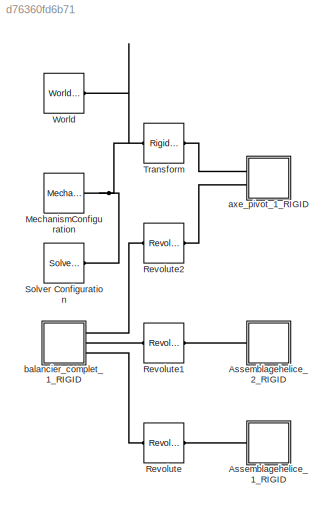
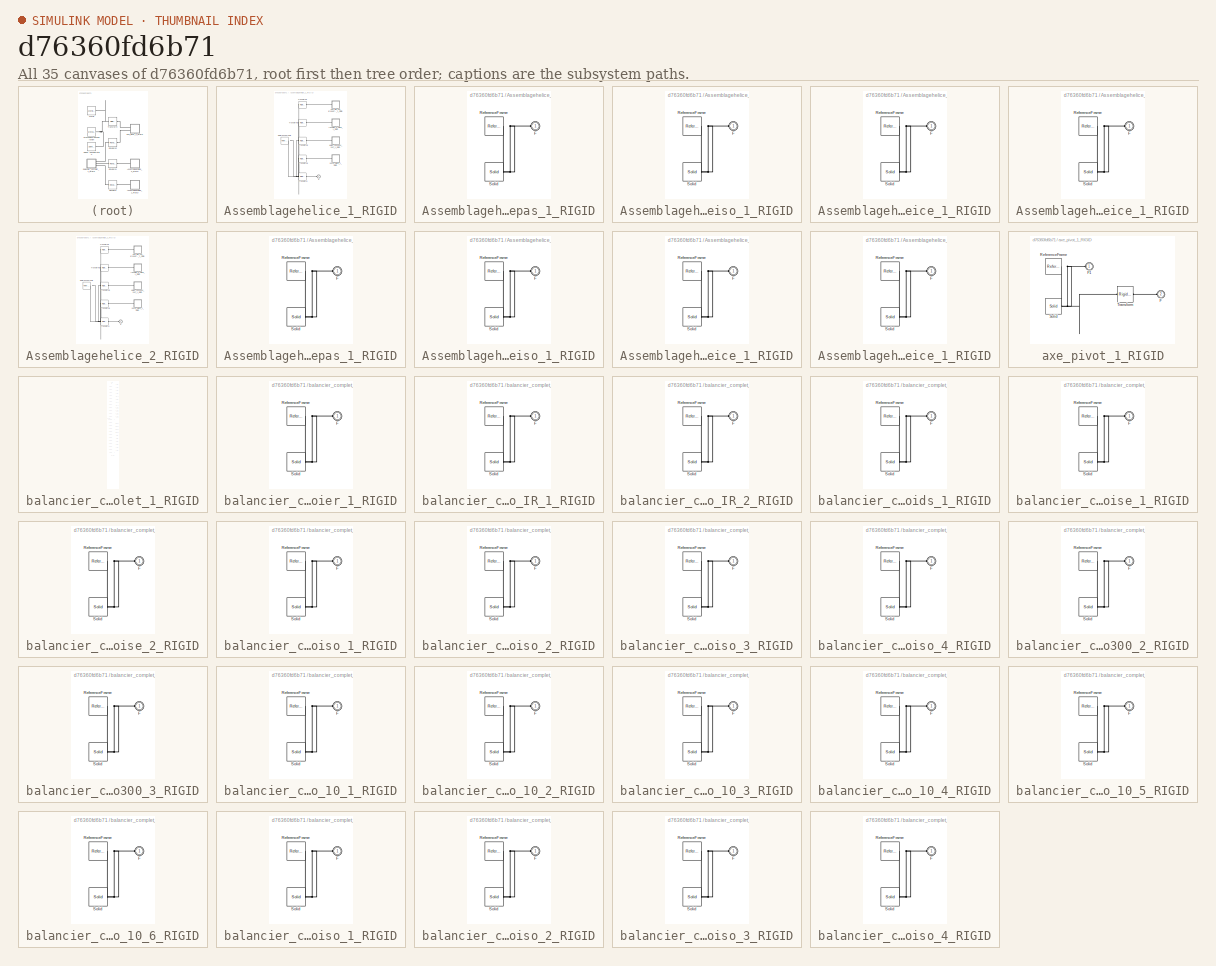
[diagram: thumbnail index - all 35 canvases of the model, root first then tree order]
MODEL slx_d76360fd6b71
KIND model
CONFIG AbsTol = auto
CONFIG EnableMultiTasking = off
CONFIG FixedStep = auto
CONFIG MaxStep = auto
CONFIG MinStep = auto
CONFIG RelTol = 1e-3
CONFIG SampleTimeConstraint = Unconstrained
CONFIG Solver = VariableStepAuto
CONFIG SolverName = VariableStepAuto
CONFIG StartTime = 0.0
CONFIG StopTime = 10.0
WORKSPACE source: external: MATLAB File  (data not in archive)
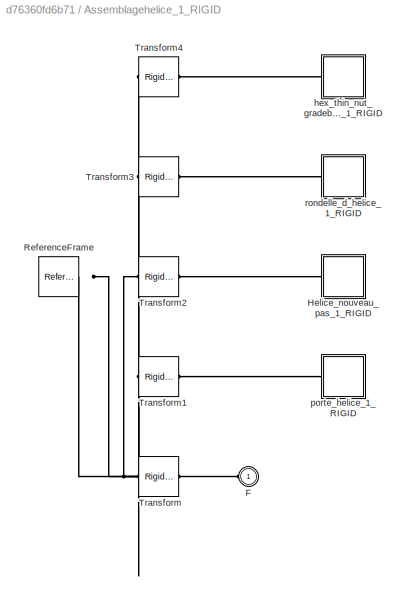
BLOCK [SubSystem] Assemblagehelice_1_RIGID
  Ports = [0, 0, 0, 0, 0, 1]
  RequestExecContextInheritance = off
  Variant = off
BLOCK [PMIOPort] Assemblagehelice_1_RIGID/F
  Port = 1
  Side = Left
BLOCK [SubSystem] Assemblagehelice_1_RIGID/Helice_nouveau_pas_1_RIGID
  Ports = [0, 0, 0, 0, 0, 1]
  RequestExecContextInheritance = off
  Variant = off
BLOCK [PMIOPort] Assemblagehelice_1_RIGID/Helice_nouveau_pas_1_RIGID/F
  Port = 1
  Side = Left
BLOCK [Reference] Assemblagehelice_1_RIGID/Helice_nouveau_pas_1_RIGID/ReferenceFrame  REF=sm_lib/Frames and
Transforms/Reference
Frame
  Ports = [0, 0, 0, 0, 0, 0, 1]
  SourceBlock = sm_lib/Frames and\nTransforms/Reference\nFrame
  SourceType = Reference\nFrame
BLOCK [Reference] Assemblagehelice_1_RIGID/Helice_nouveau_pas_1_RIGID/Solid  REF=sm_lib/Body Elements/Solid
  Ports = [0, 0, 0, 0, 0, 0, 1]
  SourceBlock = sm_lib/Body Elements/Solid
  SourceType = Solid
BLOCK [Reference] Assemblagehelice_1_RIGID/ReferenceFrame  REF=sm_lib/Frames and
Transforms/Reference
Frame
  Ports = [0, 0, 0, 0, 0, 0, 1]
  SourceBlock = sm_lib/Frames and\nTransforms/Reference\nFrame
  SourceType = Reference\nFrame
BLOCK [Reference] Assemblagehelice_1_RIGID/Transform  REF=sm_lib/Frames and
Transforms/Rigid
Transform
  Ports = [0, 0, 0, 0, 0, 1, 1]
  SourceBlock = sm_lib/Frames and\nTransforms/Rigid\nTransform
  SourceType = Rigid\nTransform
BLOCK [Reference] Assemblagehelice_1_RIGID/Transform1  REF=sm_lib/Frames and
Transforms/Rigid
Transform
  Ports = [0, 0, 0, 0, 0, 1, 1]
  SourceBlock = sm_lib/Frames and\nTransforms/Rigid\nTransform
  SourceType = Rigid\nTransform
BLOCK [Reference] Assemblagehelice_1_RIGID/Transform2  REF=sm_lib/Frames and
Transforms/Rigid
Transform
  Ports = [0, 0, 0, 0, 0, 1, 1]
  SourceBlock = sm_lib/Frames and\nTransforms/Rigid\nTransform
  SourceType = Rigid\nTransform
BLOCK [Reference] Assemblagehelice_1_RIGID/Transform3  REF=sm_lib/Frames and
Transforms/Rigid
Transform
  Ports = [0, 0, 0, 0, 0, 1, 1]
  SourceBlock = sm_lib/Frames and\nTransforms/Rigid\nTransform
  SourceType = Rigid\nTransform
BLOCK [Reference] Assemblagehelice_1_RIGID/Transform4  REF=sm_lib/Frames and
Transforms/Rigid
Transform
  Ports = [0, 0, 0, 0, 0, 1, 1]
  SourceBlock = sm_lib/Frames and\nTransforms/Rigid\nTransform
  SourceType = Rigid\nTransform
BLOCK [SubSystem] Assemblagehelice_1_RIGID/hex_thin_nut_gradeb_iso_1_RIGID
  Ports = [0, 0, 0, 0, 0, 1]
  RequestExecContextInheritance = off
  Variant = off
BLOCK [PMIOPort] Assemblagehelice_1_RIGID/hex_thin_nut_gradeb_iso_1_RIGID/F
  Port = 1
  Side = Left
BLOCK [Reference] Assemblagehelice_1_RIGID/hex_thin_nut_gradeb_iso_1_RIGID/ReferenceFrame  REF=sm_lib/Frames and
Transforms/Reference
Frame
  Ports = [0, 0, 0, 0, 0, 0, 1]
  SourceBlock = sm_lib/Frames and\nTransforms/Reference\nFrame
  SourceType = Reference\nFrame
BLOCK [Reference] Assemblagehelice_1_RIGID/hex_thin_nut_gradeb_iso_1_RIGID/Solid  REF=sm_lib/Body Elements/Solid
  Ports = [0, 0, 0, 0, 0, 0, 1]
  SourceBlock = sm_lib/Body Elements/Solid
  SourceType = Solid
BLOCK [SubSystem] Assemblagehelice_1_RIGID/porte_helice_1_RIGID
  Ports = [0, 0, 0, 0, 0, 1]
  RequestExecContextInheritance = off
  Variant = off
BLOCK [PMIOPort] Assemblagehelice_1_RIGID/porte_helice_1_RIGID/F
  Port = 1
  Side = Left
BLOCK [Reference] Assemblagehelice_1_RIGID/porte_helice_1_RIGID/ReferenceFrame  REF=sm_lib/Frames and
Transforms/Reference
Frame
  Ports = [0, 0, 0, 0, 0, 0, 1]
  SourceBlock = sm_lib/Frames and\nTransforms/Reference\nFrame
  SourceType = Reference\nFrame
BLOCK [Reference] Assemblagehelice_1_RIGID/porte_helice_1_RIGID/Solid  REF=sm_lib/Body Elements/Solid
  Ports = [0, 0, 0, 0, 0, 0, 1]
  SourceBlock = sm_lib/Body Elements/Solid
  SourceType = Solid
BLOCK [SubSystem] Assemblagehelice_1_RIGID/rondelle_d_helice_1_RIGID
  Ports = [0, 0, 0, 0, 0, 1]
  RequestExecContextInheritance = off
  Variant = off
BLOCK [PMIOPort] Assemblagehelice_1_RIGID/rondelle_d_helice_1_RIGID/F
  Port = 1
  Side = Left
BLOCK [Reference] Assemblagehelice_1_RIGID/rondelle_d_helice_1_RIGID/ReferenceFrame  REF=sm_lib/Frames and
Transforms/Reference
Frame
  Ports = [0, 0, 0, 0, 0, 0, 1]
  SourceBlock = sm_lib/Frames and\nTransforms/Reference\nFrame
  SourceType = Reference\nFrame
BLOCK [Reference] Assemblagehelice_1_RIGID/rondelle_d_helice_1_RIGID/Solid  REF=sm_lib/Body Elements/Solid
  Ports = [0, 0, 0, 0, 0, 0, 1]
  SourceBlock = sm_lib/Body Elements/Solid
  SourceType = Solid
BLOCK [SubSystem] Assemblagehelice_2_RIGID
  Ports = [0, 0, 0, 0, 0, 1]
  RequestExecContextInheritance = off
  Variant = off
BLOCK [PMIOPort] Assemblagehelice_2_RIGID/F
  Port = 1
  Side = Left
BLOCK [SubSystem] Assemblagehelice_2_RIGID/Helice_nouveau_pas_1_RIGID
  Ports = [0, 0, 0, 0, 0, 1]
  RequestExecContextInheritance = off
  Variant = off
BLOCK [PMIOPort] Assemblagehelice_2_RIGID/Helice_nouveau_pas_1_RIGID/F
  Port = 1
  Side = Left
BLOCK [Reference] Assemblagehelice_2_RIGID/Helice_nouveau_pas_1_RIGID/ReferenceFrame  REF=sm_lib/Frames and
Transforms/Reference
Frame
  Ports = [0, 0, 0, 0, 0, 0, 1]
  SourceBlock = sm_lib/Frames and\nTransforms/Reference\nFrame
  SourceType = Reference\nFrame
BLOCK [Reference] Assemblagehelice_2_RIGID/Helice_nouveau_pas_1_RIGID/Solid  REF=sm_lib/Body Elements/Solid
  Ports = [0, 0, 0, 0, 0, 0, 1]
  SourceBlock = sm_lib/Body Elements/Solid
  SourceType = Solid
BLOCK [Reference] Assemblagehelice_2_RIGID/ReferenceFrame  REF=sm_lib/Frames and
Transforms/Reference
Frame
  Ports = [0, 0, 0, 0, 0, 0, 1]
  SourceBlock = sm_lib/Frames and\nTransforms/Reference\nFrame
  SourceType = Reference\nFrame
BLOCK [Reference] Assemblagehelice_2_RIGID/Transform  REF=sm_lib/Frames and
Transforms/Rigid
Transform
  Ports = [0, 0, 0, 0, 0, 1, 1]
  SourceBlock = sm_lib/Frames and\nTransforms/Rigid\nTransform
  SourceType = Rigid\nTransform
BLOCK [Reference] Assemblagehelice_2_RIGID/Transform1  REF=sm_lib/Frames and
Transforms/Rigid
Transform
  Ports = [0, 0, 0, 0, 0, 1, 1]
  SourceBlock = sm_lib/Frames and\nTransforms/Rigid\nTransform
  SourceType = Rigid\nTransform
BLOCK [Reference] Assemblagehelice_2_RIGID/Transform2  REF=sm_lib/Frames and
Transforms/Rigid
Transform
  Ports = [0, 0, 0, 0, 0, 1, 1]
  SourceBlock = sm_lib/Frames and\nTransforms/Rigid\nTransform
  SourceType = Rigid\nTransform
BLOCK [Reference] Assemblagehelice_2_RIGID/Transform3  REF=sm_lib/Frames and
Transforms/Rigid
Transform
  Ports = [0, 0, 0, 0, 0, 1, 1]
  SourceBlock = sm_lib/Frames and\nTransforms/Rigid\nTransform
  SourceType = Rigid\nTransform
BLOCK [Reference] Assemblagehelice_2_RIGID/Transform4  REF=sm_lib/Frames and
Transforms/Rigid
Transform
  Ports = [0, 0, 0, 0, 0, 1, 1]
  SourceBlock = sm_lib/Frames and\nTransforms/Rigid\nTransform
  SourceType = Rigid\nTransform
BLOCK [SubSystem] Assemblagehelice_2_RIGID/hex_thin_nut_gradeb_iso_1_RIGID
  Ports = [0, 0, 0, 0, 0, 1]
  RequestExecContextInheritance = off
  Variant = off
BLOCK [PMIOPort] Assemblagehelice_2_RIGID/hex_thin_nut_gradeb_iso_1_RIGID/F
  Port = 1
  Side = Left
BLOCK [Reference] Assemblagehelice_2_RIGID/hex_thin_nut_gradeb_iso_1_RIGID/ReferenceFrame  REF=sm_lib/Frames and
Transforms/Reference
Frame
  Ports = [0, 0, 0, 0, 0, 0, 1]
  SourceBlock = sm_lib/Frames and\nTransforms/Reference\nFrame
  SourceType = Reference\nFrame
BLOCK [Reference] Assemblagehelice_2_RIGID/hex_thin_nut_gradeb_iso_1_RIGID/Solid  REF=sm_lib/Body Elements/Solid
  Ports = [0, 0, 0, 0, 0, 0, 1]
  SourceBlock = sm_lib/Body Elements/Solid
  SourceType = Solid
BLOCK [SubSystem] Assemblagehelice_2_RIGID/porte_helice_1_RIGID
  Ports = [0, 0, 0, 0, 0, 1]
  RequestExecContextInheritance = off
  Variant = off
BLOCK [PMIOPort] Assemblagehelice_2_RIGID/porte_helice_1_RIGID/F
  Port = 1
  Side = Left
BLOCK [Reference] Assemblagehelice_2_RIGID/porte_helice_1_RIGID/ReferenceFrame  REF=sm_lib/Frames and
Transforms/Reference
Frame
  Ports = [0, 0, 0, 0, 0, 0, 1]
  SourceBlock = sm_lib/Frames and\nTransforms/Reference\nFrame
  SourceType = Reference\nFrame
BLOCK [Reference] Assemblagehelice_2_RIGID/porte_helice_1_RIGID/Solid  REF=sm_lib/Body Elements/Solid
  Ports = [0, 0, 0, 0, 0, 0, 1]
  SourceBlock = sm_lib/Body Elements/Solid
  SourceType = Solid
BLOCK [SubSystem] Assemblagehelice_2_RIGID/rondelle_d_helice_1_RIGID
  Ports = [0, 0, 0, 0, 0, 1]
  RequestExecContextInheritance = off
  Variant = off
BLOCK [PMIOPort] Assemblagehelice_2_RIGID/rondelle_d_helice_1_RIGID/F
  Port = 1
  Side = Left
BLOCK [Reference] Assemblagehelice_2_RIGID/rondelle_d_helice_1_RIGID/ReferenceFrame  REF=sm_lib/Frames and
Transforms/Reference
Frame
  Ports = [0, 0, 0, 0, 0, 0, 1]
  SourceBlock = sm_lib/Frames and\nTransforms/Reference\nFrame
  SourceType = Reference\nFrame
BLOCK [Reference] Assemblagehelice_2_RIGID/rondelle_d_helice_1_RIGID/Solid  REF=sm_lib/Body Elements/Solid
  Ports = [0, 0, 0, 0, 0, 0, 1]
  SourceBlock = sm_lib/Body Elements/Solid
  SourceType = Solid
BLOCK [Reference] MechanismConfiguration  REF=sm_lib/Utilities/Mechanism
Configuration
  Ports = [0, 0, 0, 0, 0, 0, 1]
  SourceBlock = sm_lib/Utilities/Mechanism\nConfiguration
  SourceType = Mechanism\nConfiguration
BLOCK [Reference] Revolute  REF=sm_lib/Joints/Revolute Joint
  Ports = [0, 0, 0, 0, 0, 1, 1]
  SourceBlock = sm_lib/Joints/Revolute Joint
  SourceType = Revolute Joint
BLOCK [Reference] Revolute1  REF=sm_lib/Joints/Revolute Joint
  Ports = [0, 0, 0, 0, 0, 1, 1]
  SourceBlock = sm_lib/Joints/Revolute Joint
  SourceType = Revolute Joint
BLOCK [Reference] Revolute2  REF=sm_lib/Joints/Revolute Joint
  Ports = [0, 0, 0, 0, 0, 1, 1]
  SourceBlock = sm_lib/Joints/Revolute Joint
  SourceType = Revolute Joint
BLOCK [Reference] Solver Configuration  REF=nesl_utility/Solver
Configuration
  Ports = [0, 0, 0, 0, 0, 0, 1]
  SourceBlock = nesl_utility/Solver\nConfiguration
  SourceType = Solver\nConfiguration
BLOCK [Reference] Transform  REF=sm_lib/Frames and
Transforms/Rigid
Transform
  Ports = [0, 0, 0, 0, 0, 1, 1]
  SourceBlock = sm_lib/Frames and\nTransforms/Rigid\nTransform
  SourceType = Rigid\nTransform
BLOCK [Reference] World  REF=sm_lib/Frames and
Transforms/World Frame
  Ports = [0, 0, 0, 0, 0, 0, 1]
  SourceBlock = sm_lib/Frames and\nTransforms/World Frame
  SourceType = World Frame
BLOCK [SubSystem] axe_pivot_1_RIGID
  Ports = [0, 0, 0, 0, 0, 2]
  RequestExecContextInheritance = off
  Variant = off
BLOCK [PMIOPort] axe_pivot_1_RIGID/F
  Port = 2
  Side = Left
BLOCK [PMIOPort] axe_pivot_1_RIGID/F1
  Port = 1
  Side = Left
BLOCK [Reference] axe_pivot_1_RIGID/ReferenceFrame  REF=sm_lib/Frames and
Transforms/Reference
Frame
  Ports = [0, 0, 0, 0, 0, 0, 1]
  SourceBlock = sm_lib/Frames and\nTransforms/Reference\nFrame
  SourceType = Reference\nFrame
BLOCK [Reference] axe_pivot_1_RIGID/Solid  REF=sm_lib/Body Elements/Solid
  Ports = [0, 0, 0, 0, 0, 0, 1]
  SourceBlock = sm_lib/Body Elements/Solid
  SourceType = Solid
BLOCK [Reference] axe_pivot_1_RIGID/Transform  REF=sm_lib/Frames and
Transforms/Rigid
Transform
  Ports = [0, 0, 0, 0, 0, 1, 1]
  SourceBlock = sm_lib/Frames and\nTransforms/Rigid\nTransform
  SourceType = Rigid\nTransform
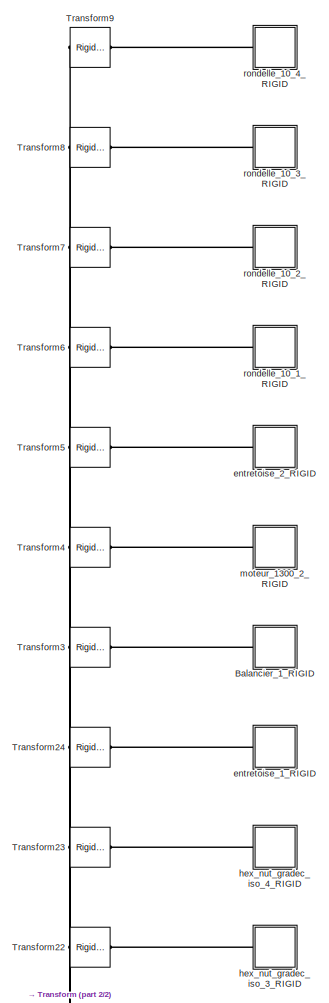
[diagram: balancier_complet_1_RIGID - part 1/2, full width, top band]
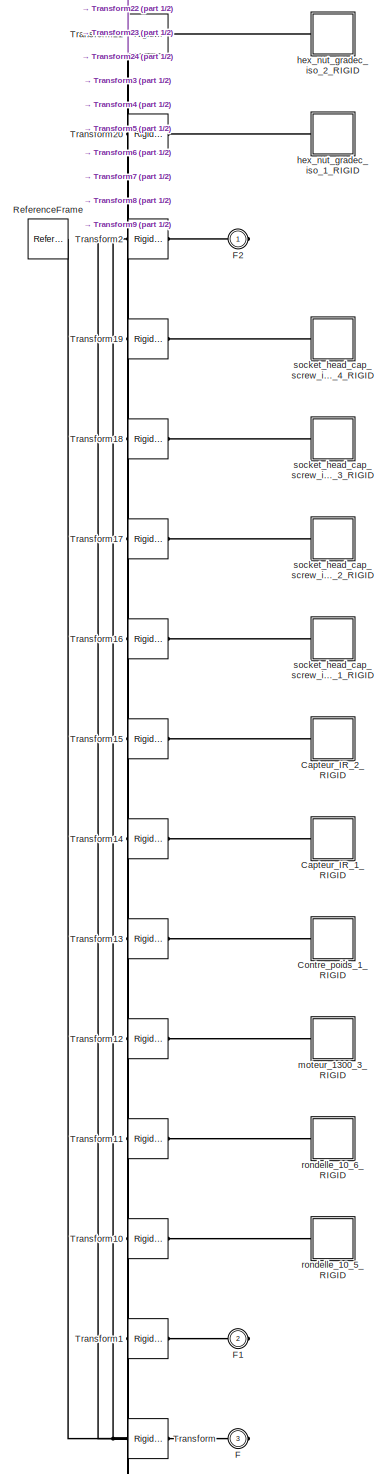
[diagram: balancier_complet_1_RIGID - part 2/2, full width, middle band]
BLOCK [SubSystem] balancier_complet_1_RIGID
  Ports = [0, 0, 0, 0, 0, 0, 3]
  RequestExecContextInheritance = off
  Variant = off
BLOCK [SubSystem] balancier_complet_1_RIGID/Balancier_1_RIGID
  Ports = [0, 0, 0, 0, 0, 1]
  RequestExecContextInheritance = off
  Variant = off
BLOCK [PMIOPort] balancier_complet_1_RIGID/Balancier_1_RIGID/F
  Port = 1
  Side = Left
BLOCK [Reference] balancier_complet_1_RIGID/Balancier_1_RIGID/ReferenceFrame  REF=sm_lib/Frames and
Transforms/Reference
Frame
  Ports = [0, 0, 0, 0, 0, 0, 1]
  SourceBlock = sm_lib/Frames and\nTransforms/Reference\nFrame
  SourceType = Reference\nFrame
BLOCK [Reference] balancier_complet_1_RIGID/Balancier_1_RIGID/Solid  REF=sm_lib/Body Elements/Solid
  Ports = [0, 0, 0, 0, 0, 0, 1]
  SourceBlock = sm_lib/Body Elements/Solid
  SourceType = Solid
BLOCK [SubSystem] balancier_complet_1_RIGID/Capteur_IR_1_RIGID
  Ports = [0, 0, 0, 0, 0, 1]
  RequestExecContextInheritance = off
  Variant = off
BLOCK [PMIOPort] balancier_complet_1_RIGID/Capteur_IR_1_RIGID/F
  Port = 1
  Side = Left
BLOCK [Reference] balancier_complet_1_RIGID/Capteur_IR_1_RIGID/ReferenceFrame  REF=sm_lib/Frames and
Transforms/Reference
Frame
  Ports = [0, 0, 0, 0, 0, 0, 1]
  SourceBlock = sm_lib/Frames and\nTransforms/Reference\nFrame
  SourceType = Reference\nFrame
BLOCK [Reference] balancier_complet_1_RIGID/Capteur_IR_1_RIGID/Solid  REF=sm_lib/Body Elements/Solid
  Ports = [0, 0, 0, 0, 0, 0, 1]
  SourceBlock = sm_lib/Body Elements/Solid
  SourceType = Solid
BLOCK [SubSystem] balancier_complet_1_RIGID/Capteur_IR_2_RIGID
  Ports = [0, 0, 0, 0, 0, 1]
  RequestExecContextInheritance = off
  Variant = off
BLOCK [PMIOPort] balancier_complet_1_RIGID/Capteur_IR_2_RIGID/F
  Port = 1
  Side = Left
BLOCK [Reference] balancier_complet_1_RIGID/Capteur_IR_2_RIGID/ReferenceFrame  REF=sm_lib/Frames and
Transforms/Reference
Frame
  Ports = [0, 0, 0, 0, 0, 0, 1]
  SourceBlock = sm_lib/Frames and\nTransforms/Reference\nFrame
  SourceType = Reference\nFrame
BLOCK [Reference] balancier_complet_1_RIGID/Capteur_IR_2_RIGID/Solid  REF=sm_lib/Body Elements/Solid
  Ports = [0, 0, 0, 0, 0, 0, 1]
  SourceBlock = sm_lib/Body Elements/Solid
  SourceType = Solid
BLOCK [SubSystem] balancier_complet_1_RIGID/Contre_poids_1_RIGID
  Ports = [0, 0, 0, 0, 0, 1]
  RequestExecContextInheritance = off
  Variant = off
BLOCK [PMIOPort] balancier_complet_1_RIGID/Contre_poids_1_RIGID/F
  Port = 1
  Side = Left
BLOCK [Reference] balancier_complet_1_RIGID/Contre_poids_1_RIGID/ReferenceFrame  REF=sm_lib/Frames and
Transforms/Reference
Frame
  Ports = [0, 0, 0, 0, 0, 0, 1]
  SourceBlock = sm_lib/Frames and\nTransforms/Reference\nFrame
  SourceType = Reference\nFrame
BLOCK [Reference] balancier_complet_1_RIGID/Contre_poids_1_RIGID/Solid  REF=sm_lib/Body Elements/Solid
  Ports = [0, 0, 0, 0, 0, 0, 1]
  SourceBlock = sm_lib/Body Elements/Solid
  SourceType = Solid
BLOCK [PMIOPort] balancier_complet_1_RIGID/F
  Port = 3
  Side = Right
BLOCK [PMIOPort] balancier_complet_1_RIGID/F1
  Port = 2
  Side = Right
BLOCK [PMIOPort] balancier_complet_1_RIGID/F2
  Port = 1
  Side = Right
BLOCK [Reference] balancier_complet_1_RIGID/ReferenceFrame  REF=sm_lib/Frames and
Transforms/Reference
Frame
  Ports = [0, 0, 0, 0, 0, 0, 1]
  SourceBlock = sm_lib/Frames and\nTransforms/Reference\nFrame
  SourceType = Reference\nFrame
BLOCK [Reference] balancier_complet_1_RIGID/Transform  REF=sm_lib/Frames and
Transforms/Rigid
Transform
  Ports = [0, 0, 0, 0, 0, 1, 1]
  SourceBlock = sm_lib/Frames and\nTransforms/Rigid\nTransform
  SourceType = Rigid\nTransform
BLOCK [Reference] balancier_complet_1_RIGID/Transform1  REF=sm_lib/Frames and
Transforms/Rigid
Transform
  Ports = [0, 0, 0, 0, 0, 1, 1]
  SourceBlock = sm_lib/Frames and\nTransforms/Rigid\nTransform
  SourceType = Rigid\nTransform
BLOCK [Reference] balancier_complet_1_RIGID/Transform10  REF=sm_lib/Frames and
Transforms/Rigid
Transform
  Ports = [0, 0, 0, 0, 0, 1, 1]
  SourceBlock = sm_lib/Frames and\nTransforms/Rigid\nTransform
  SourceType = Rigid\nTransform
BLOCK [Reference] balancier_complet_1_RIGID/Transform11  REF=sm_lib/Frames and
Transforms/Rigid
Transform
  Ports = [0, 0, 0, 0, 0, 1, 1]
  SourceBlock = sm_lib/Frames and\nTransforms/Rigid\nTransform
  SourceType = Rigid\nTransform
BLOCK [Reference] balancier_complet_1_RIGID/Transform12  REF=sm_lib/Frames and
Transforms/Rigid
Transform
  Ports = [0, 0, 0, 0, 0, 1, 1]
  SourceBlock = sm_lib/Frames and\nTransforms/Rigid\nTransform
  SourceType = Rigid\nTransform
BLOCK [Reference] balancier_complet_1_RIGID/Transform13  REF=sm_lib/Frames and
Transforms/Rigid
Transform
  Ports = [0, 0, 0, 0, 0, 1, 1]
  SourceBlock = sm_lib/Frames and\nTransforms/Rigid\nTransform
  SourceType = Rigid\nTransform
BLOCK [Reference] balancier_complet_1_RIGID/Transform14  REF=sm_lib/Frames and
Transforms/Rigid
Transform
  Ports = [0, 0, 0, 0, 0, 1, 1]
  SourceBlock = sm_lib/Frames and\nTransforms/Rigid\nTransform
  SourceType = Rigid\nTransform
BLOCK [Reference] balancier_complet_1_RIGID/Transform15  REF=sm_lib/Frames and
Transforms/Rigid
Transform
  Ports = [0, 0, 0, 0, 0, 1, 1]
  SourceBlock = sm_lib/Frames and\nTransforms/Rigid\nTransform
  SourceType = Rigid\nTransform
BLOCK [Reference] balancier_complet_1_RIGID/Transform16  REF=sm_lib/Frames and
Transforms/Rigid
Transform
  Ports = [0, 0, 0, 0, 0, 1, 1]
  SourceBlock = sm_lib/Frames and\nTransforms/Rigid\nTransform
  SourceType = Rigid\nTransform
BLOCK [Reference] balancier_complet_1_RIGID/Transform17  REF=sm_lib/Frames and
Transforms/Rigid
Transform
  Ports = [0, 0, 0, 0, 0, 1, 1]
  SourceBlock = sm_lib/Frames and\nTransforms/Rigid\nTransform
  SourceType = Rigid\nTransform
BLOCK [Reference] balancier_complet_1_RIGID/Transform18  REF=sm_lib/Frames and
Transforms/Rigid
Transform
  Ports = [0, 0, 0, 0, 0, 1, 1]
  SourceBlock = sm_lib/Frames and\nTransforms/Rigid\nTransform
  SourceType = Rigid\nTransform
BLOCK [Reference] balancier_complet_1_RIGID/Transform19  REF=sm_lib/Frames and
Transforms/Rigid
Transform
  Ports = [0, 0, 0, 0, 0, 1, 1]
  SourceBlock = sm_lib/Frames and\nTransforms/Rigid\nTransform
  SourceType = Rigid\nTransform
BLOCK [Reference] balancier_complet_1_RIGID/Transform2  REF=sm_lib/Frames and
Transforms/Rigid
Transform
  Ports = [0, 0, 0, 0, 0, 1, 1]
  SourceBlock = sm_lib/Frames and\nTransforms/Rigid\nTransform
  SourceType = Rigid\nTransform
BLOCK [Reference] balancier_complet_1_RIGID/Transform20  REF=sm_lib/Frames and
Transforms/Rigid
Transform
  Ports = [0, 0, 0, 0, 0, 1, 1]
  SourceBlock = sm_lib/Frames and\nTransforms/Rigid\nTransform
  SourceType = Rigid\nTransform
BLOCK [Reference] balancier_complet_1_RIGID/Transform21  REF=sm_lib/Frames and
Transforms/Rigid
Transform
  Ports = [0, 0, 0, 0, 0, 1, 1]
  SourceBlock = sm_lib/Frames and\nTransforms/Rigid\nTransform
  SourceType = Rigid\nTransform
BLOCK [Reference] balancier_complet_1_RIGID/Transform22  REF=sm_lib/Frames and
Transforms/Rigid
Transform
  Ports = [0, 0, 0, 0, 0, 1, 1]
  SourceBlock = sm_lib/Frames and\nTransforms/Rigid\nTransform
  SourceType = Rigid\nTransform
BLOCK [Reference] balancier_complet_1_RIGID/Transform23  REF=sm_lib/Frames and
Transforms/Rigid
Transform
  Ports = [0, 0, 0, 0, 0, 1, 1]
  SourceBlock = sm_lib/Frames and\nTransforms/Rigid\nTransform
  SourceType = Rigid\nTransform
BLOCK [Reference] balancier_complet_1_RIGID/Transform24  REF=sm_lib/Frames and
Transforms/Rigid
Transform
  Ports = [0, 0, 0, 0, 0, 1, 1]
  SourceBlock = sm_lib/Frames and\nTransforms/Rigid\nTransform
  SourceType = Rigid\nTransform
BLOCK [Reference] balancier_complet_1_RIGID/Transform3  REF=sm_lib/Frames and
Transforms/Rigid
Transform
  Ports = [0, 0, 0, 0, 0, 1, 1]
  SourceBlock = sm_lib/Frames and\nTransforms/Rigid\nTransform
  SourceType = Rigid\nTransform
BLOCK [Reference] balancier_complet_1_RIGID/Transform4  REF=sm_lib/Frames and
Transforms/Rigid
Transform
  Ports = [0, 0, 0, 0, 0, 1, 1]
  SourceBlock = sm_lib/Frames and\nTransforms/Rigid\nTransform
  SourceType = Rigid\nTransform
BLOCK [Reference] balancier_complet_1_RIGID/Transform5  REF=sm_lib/Frames and
Transforms/Rigid
Transform
  Ports = [0, 0, 0, 0, 0, 1, 1]
  SourceBlock = sm_lib/Frames and\nTransforms/Rigid\nTransform
  SourceType = Rigid\nTransform
BLOCK [Reference] balancier_complet_1_RIGID/Transform6  REF=sm_lib/Frames and
Transforms/Rigid
Transform
  Ports = [0, 0, 0, 0, 0, 1, 1]
  SourceBlock = sm_lib/Frames and\nTransforms/Rigid\nTransform
  SourceType = Rigid\nTransform
BLOCK [Reference] balancier_complet_1_RIGID/Transform7  REF=sm_lib/Frames and
Transforms/Rigid
Transform
  Ports = [0, 0, 0, 0, 0, 1, 1]
  SourceBlock = sm_lib/Frames and\nTransforms/Rigid\nTransform
  SourceType = Rigid\nTransform
BLOCK [Reference] balancier_complet_1_RIGID/Transform8  REF=sm_lib/Frames and
Transforms/Rigid
Transform
  Ports = [0, 0, 0, 0, 0, 1, 1]
  SourceBlock = sm_lib/Frames and\nTransforms/Rigid\nTransform
  SourceType = Rigid\nTransform
BLOCK [Reference] balancier_complet_1_RIGID/Transform9  REF=sm_lib/Frames and
Transforms/Rigid
Transform
  Ports = [0, 0, 0, 0, 0, 1, 1]
  SourceBlock = sm_lib/Frames and\nTransforms/Rigid\nTransform
  SourceType = Rigid\nTransform
BLOCK [SubSystem] balancier_complet_1_RIGID/entretoise_1_RIGID
  Ports = [0, 0, 0, 0, 0, 1]
  RequestExecContextInheritance = off
  Variant = off
BLOCK [PMIOPort] balancier_complet_1_RIGID/entretoise_1_RIGID/F
  Port = 1
  Side = Left
BLOCK [Reference] balancier_complet_1_RIGID/entretoise_1_RIGID/ReferenceFrame  REF=sm_lib/Frames and
Transforms/Reference
Frame
  Ports = [0, 0, 0, 0, 0, 0, 1]
  SourceBlock = sm_lib/Frames and\nTransforms/Reference\nFrame
  SourceType = Reference\nFrame
BLOCK [Reference] balancier_complet_1_RIGID/entretoise_1_RIGID/Solid  REF=sm_lib/Body Elements/Solid
  Ports = [0, 0, 0, 0, 0, 0, 1]
  SourceBlock = sm_lib/Body Elements/Solid
  SourceType = Solid
BLOCK [SubSystem] balancier_complet_1_RIGID/entretoise_2_RIGID
  Ports = [0, 0, 0, 0, 0, 1]
  RequestExecContextInheritance = off
  Variant = off
BLOCK [PMIOPort] balancier_complet_1_RIGID/entretoise_2_RIGID/F
  Port = 1
  Side = Left
BLOCK [Reference] balancier_complet_1_RIGID/entretoise_2_RIGID/ReferenceFrame  REF=sm_lib/Frames and
Transforms/Reference
Frame
  Ports = [0, 0, 0, 0, 0, 0, 1]
  SourceBlock = sm_lib/Frames and\nTransforms/Reference\nFrame
  SourceType = Reference\nFrame
BLOCK [Reference] balancier_complet_1_RIGID/entretoise_2_RIGID/Solid  REF=sm_lib/Body Elements/Solid
  Ports = [0, 0, 0, 0, 0, 0, 1]
  SourceBlock = sm_lib/Body Elements/Solid
  SourceType = Solid
BLOCK [SubSystem] balancier_complet_1_RIGID/hex_nut_gradec_iso_1_RIGID
  Ports = [0, 0, 0, 0, 0, 1]
  RequestExecContextInheritance = off
  Variant = off
BLOCK [PMIOPort] balancier_complet_1_RIGID/hex_nut_gradec_iso_1_RIGID/F
  Port = 1
  Side = Left
BLOCK [Reference] balancier_complet_1_RIGID/hex_nut_gradec_iso_1_RIGID/ReferenceFrame  REF=sm_lib/Frames and
Transforms/Reference
Frame
  Ports = [0, 0, 0, 0, 0, 0, 1]
  SourceBlock = sm_lib/Frames and\nTransforms/Reference\nFrame
  SourceType = Reference\nFrame
BLOCK [Reference] balancier_complet_1_RIGID/hex_nut_gradec_iso_1_RIGID/Solid  REF=sm_lib/Body Elements/Solid
  Ports = [0, 0, 0, 0, 0, 0, 1]
  SourceBlock = sm_lib/Body Elements/Solid
  SourceType = Solid
BLOCK [SubSystem] balancier_complet_1_RIGID/hex_nut_gradec_iso_2_RIGID
  Ports = [0, 0, 0, 0, 0, 1]
  RequestExecContextInheritance = off
  Variant = off
BLOCK [PMIOPort] balancier_complet_1_RIGID/hex_nut_gradec_iso_2_RIGID/F
  Port = 1
  Side = Left
BLOCK [Reference] balancier_complet_1_RIGID/hex_nut_gradec_iso_2_RIGID/ReferenceFrame  REF=sm_lib/Frames and
Transforms/Reference
Frame
  Ports = [0, 0, 0, 0, 0, 0, 1]
  SourceBlock = sm_lib/Frames and\nTransforms/Reference\nFrame
  SourceType = Reference\nFrame
BLOCK [Reference] balancier_complet_1_RIGID/hex_nut_gradec_iso_2_RIGID/Solid  REF=sm_lib/Body Elements/Solid
  Ports = [0, 0, 0, 0, 0, 0, 1]
  SourceBlock = sm_lib/Body Elements/Solid
  SourceType = Solid
BLOCK [SubSystem] balancier_complet_1_RIGID/hex_nut_gradec_iso_3_RIGID
  Ports = [0, 0, 0, 0, 0, 1]
  RequestExecContextInheritance = off
  Variant = off
BLOCK [PMIOPort] balancier_complet_1_RIGID/hex_nut_gradec_iso_3_RIGID/F
  Port = 1
  Side = Left
BLOCK [Reference] balancier_complet_1_RIGID/hex_nut_gradec_iso_3_RIGID/ReferenceFrame  REF=sm_lib/Frames and
Transforms/Reference
Frame
  Ports = [0, 0, 0, 0, 0, 0, 1]
  SourceBlock = sm_lib/Frames and\nTransforms/Reference\nFrame
  SourceType = Reference\nFrame
BLOCK [Reference] balancier_complet_1_RIGID/hex_nut_gradec_iso_3_RIGID/Solid  REF=sm_lib/Body Elements/Solid
  Ports = [0, 0, 0, 0, 0, 0, 1]
  SourceBlock = sm_lib/Body Elements/Solid
  SourceType = Solid
BLOCK [SubSystem] balancier_complet_1_RIGID/hex_nut_gradec_iso_4_RIGID
  Ports = [0, 0, 0, 0, 0, 1]
  RequestExecContextInheritance = off
  Variant = off
BLOCK [PMIOPort] balancier_complet_1_RIGID/hex_nut_gradec_iso_4_RIGID/F
  Port = 1
  Side = Left
BLOCK [Reference] balancier_complet_1_RIGID/hex_nut_gradec_iso_4_RIGID/ReferenceFrame  REF=sm_lib/Frames and
Transforms/Reference
Frame
  Ports = [0, 0, 0, 0, 0, 0, 1]
  SourceBlock = sm_lib/Frames and\nTransforms/Reference\nFrame
  SourceType = Reference\nFrame
BLOCK [Reference] balancier_complet_1_RIGID/hex_nut_gradec_iso_4_RIGID/Solid  REF=sm_lib/Body Elements/Solid
  Ports = [0, 0, 0, 0, 0, 0, 1]
  SourceBlock = sm_lib/Body Elements/Solid
  SourceType = Solid
BLOCK [SubSystem] balancier_complet_1_RIGID/moteur_1300_2_RIGID
  Ports = [0, 0, 0, 0, 0, 1]
  RequestExecContextInheritance = off
  Variant = off
BLOCK [PMIOPort] balancier_complet_1_RIGID/moteur_1300_2_RIGID/F
  Port = 1
  Side = Left
BLOCK [Reference] balancier_complet_1_RIGID/moteur_1300_2_RIGID/ReferenceFrame  REF=sm_lib/Frames and
Transforms/Reference
Frame
  Ports = [0, 0, 0, 0, 0, 0, 1]
  SourceBlock = sm_lib/Frames and\nTransforms/Reference\nFrame
  SourceType = Reference\nFrame
BLOCK [Reference] balancier_complet_1_RIGID/moteur_1300_2_RIGID/Solid  REF=sm_lib/Body Elements/Solid
  Ports = [0, 0, 0, 0, 0, 0, 1]
  SourceBlock = sm_lib/Body Elements/Solid
  SourceType = Solid
BLOCK [SubSystem] balancier_complet_1_RIGID/moteur_1300_3_RIGID
  Ports = [0, 0, 0, 0, 0, 1]
  RequestExecContextInheritance = off
  Variant = off
BLOCK [PMIOPort] balancier_complet_1_RIGID/moteur_1300_3_RIGID/F
  Port = 1
  Side = Left
BLOCK [Reference] balancier_complet_1_RIGID/moteur_1300_3_RIGID/ReferenceFrame  REF=sm_lib/Frames and
Transforms/Reference
Frame
  Ports = [0, 0, 0, 0, 0, 0, 1]
  SourceBlock = sm_lib/Frames and\nTransforms/Reference\nFrame
  SourceType = Reference\nFrame
BLOCK [Reference] balancier_complet_1_RIGID/moteur_1300_3_RIGID/Solid  REF=sm_lib/Body Elements/Solid
  Ports = [0, 0, 0, 0, 0, 0, 1]
  SourceBlock = sm_lib/Body Elements/Solid
  SourceType = Solid
BLOCK [SubSystem] balancier_complet_1_RIGID/rondelle_10_1_RIGID
  Ports = [0, 0, 0, 0, 0, 1]
  RequestExecContextInheritance = off
  Variant = off
BLOCK [PMIOPort] balancier_complet_1_RIGID/rondelle_10_1_RIGID/F
  Port = 1
  Side = Left
BLOCK [Reference] balancier_complet_1_RIGID/rondelle_10_1_RIGID/ReferenceFrame  REF=sm_lib/Frames and
Transforms/Reference
Frame
  Ports = [0, 0, 0, 0, 0, 0, 1]
  SourceBlock = sm_lib/Frames and\nTransforms/Reference\nFrame
  SourceType = Reference\nFrame
BLOCK [Reference] balancier_complet_1_RIGID/rondelle_10_1_RIGID/Solid  REF=sm_lib/Body Elements/Solid
  Ports = [0, 0, 0, 0, 0, 0, 1]
  SourceBlock = sm_lib/Body Elements/Solid
  SourceType = Solid
BLOCK [SubSystem] balancier_complet_1_RIGID/rondelle_10_2_RIGID
  Ports = [0, 0, 0, 0, 0, 1]
  RequestExecContextInheritance = off
  Variant = off
BLOCK [PMIOPort] balancier_complet_1_RIGID/rondelle_10_2_RIGID/F
  Port = 1
  Side = Left
BLOCK [Reference] balancier_complet_1_RIGID/rondelle_10_2_RIGID/ReferenceFrame  REF=sm_lib/Frames and
Transforms/Reference
Frame
  Ports = [0, 0, 0, 0, 0, 0, 1]
  SourceBlock = sm_lib/Frames and\nTransforms/Reference\nFrame
  SourceType = Reference\nFrame
BLOCK [Reference] balancier_complet_1_RIGID/rondelle_10_2_RIGID/Solid  REF=sm_lib/Body Elements/Solid
  Ports = [0, 0, 0, 0, 0, 0, 1]
  SourceBlock = sm_lib/Body Elements/Solid
  SourceType = Solid
BLOCK [SubSystem] balancier_complet_1_RIGID/rondelle_10_3_RIGID
  Ports = [0, 0, 0, 0, 0, 1]
  RequestExecContextInheritance = off
  Variant = off
BLOCK [PMIOPort] balancier_complet_1_RIGID/rondelle_10_3_RIGID/F
  Port = 1
  Side = Left
BLOCK [Reference] balancier_complet_1_RIGID/rondelle_10_3_RIGID/ReferenceFrame  REF=sm_lib/Frames and
Transforms/Reference
Frame
  Ports = [0, 0, 0, 0, 0, 0, 1]
  SourceBlock = sm_lib/Frames and\nTransforms/Reference\nFrame
  SourceType = Reference\nFrame
BLOCK [Reference] balancier_complet_1_RIGID/rondelle_10_3_RIGID/Solid  REF=sm_lib/Body Elements/Solid
  Ports = [0, 0, 0, 0, 0, 0, 1]
  SourceBlock = sm_lib/Body Elements/Solid
  SourceType = Solid
BLOCK [SubSystem] balancier_complet_1_RIGID/rondelle_10_4_RIGID
  Ports = [0, 0, 0, 0, 0, 1]
  RequestExecContextInheritance = off
  Variant = off
BLOCK [PMIOPort] balancier_complet_1_RIGID/rondelle_10_4_RIGID/F
  Port = 1
  Side = Left
BLOCK [Reference] balancier_complet_1_RIGID/rondelle_10_4_RIGID/ReferenceFrame  REF=sm_lib/Frames and
Transforms/Reference
Frame
  Ports = [0, 0, 0, 0, 0, 0, 1]
  SourceBlock = sm_lib/Frames and\nTransforms/Reference\nFrame
  SourceType = Reference\nFrame
BLOCK [Reference] balancier_complet_1_RIGID/rondelle_10_4_RIGID/Solid  REF=sm_lib/Body Elements/Solid
  Ports = [0, 0, 0, 0, 0, 0, 1]
  SourceBlock = sm_lib/Body Elements/Solid
  SourceType = Solid
BLOCK [SubSystem] balancier_complet_1_RIGID/rondelle_10_5_RIGID
  Ports = [0, 0, 0, 0, 0, 1]
  RequestExecContextInheritance = off
  Variant = off
BLOCK [PMIOPort] balancier_complet_1_RIGID/rondelle_10_5_RIGID/F
  Port = 1
  Side = Left
BLOCK [Reference] balancier_complet_1_RIGID/rondelle_10_5_RIGID/ReferenceFrame  REF=sm_lib/Frames and
Transforms/Reference
Frame
  Ports = [0, 0, 0, 0, 0, 0, 1]
  SourceBlock = sm_lib/Frames and\nTransforms/Reference\nFrame
  SourceType = Reference\nFrame
BLOCK [Reference] balancier_complet_1_RIGID/rondelle_10_5_RIGID/Solid  REF=sm_lib/Body Elements/Solid
  Ports = [0, 0, 0, 0, 0, 0, 1]
  SourceBlock = sm_lib/Body Elements/Solid
  SourceType = Solid
BLOCK [SubSystem] balancier_complet_1_RIGID/rondelle_10_6_RIGID
  Ports = [0, 0, 0, 0, 0, 1]
  RequestExecContextInheritance = off
  Variant = off
BLOCK [PMIOPort] balancier_complet_1_RIGID/rondelle_10_6_RIGID/F
  Port = 1
  Side = Left
BLOCK [Reference] balancier_complet_1_RIGID/rondelle_10_6_RIGID/ReferenceFrame  REF=sm_lib/Frames and
Transforms/Reference
Frame
  Ports = [0, 0, 0, 0, 0, 0, 1]
  SourceBlock = sm_lib/Frames and\nTransforms/Reference\nFrame
  SourceType = Reference\nFrame
BLOCK [Reference] balancier_complet_1_RIGID/rondelle_10_6_RIGID/Solid  REF=sm_lib/Body Elements/Solid
  Ports = [0, 0, 0, 0, 0, 0, 1]
  SourceBlock = sm_lib/Body Elements/Solid
  SourceType = Solid
BLOCK [SubSystem] balancier_complet_1_RIGID/socket_head_cap_screw_iso_1_RIGID
  Ports = [0, 0, 0, 0, 0, 1]
  RequestExecContextInheritance = off
  Variant = off
BLOCK [PMIOPort] balancier_complet_1_RIGID/socket_head_cap_screw_iso_1_RIGID/F
  Port = 1
  Side = Left
BLOCK [Reference] balancier_complet_1_RIGID/socket_head_cap_screw_iso_1_RIGID/ReferenceFrame  REF=sm_lib/Frames and
Transforms/Reference
Frame
  Ports = [0, 0, 0, 0, 0, 0, 1]
  SourceBlock = sm_lib/Frames and\nTransforms/Reference\nFrame
  SourceType = Reference\nFrame
BLOCK [Reference] balancier_complet_1_RIGID/socket_head_cap_screw_iso_1_RIGID/Solid  REF=sm_lib/Body Elements/Solid
  Ports = [0, 0, 0, 0, 0, 0, 1]
  SourceBlock = sm_lib/Body Elements/Solid
  SourceType = Solid
BLOCK [SubSystem] balancier_complet_1_RIGID/socket_head_cap_screw_iso_2_RIGID
  Ports = [0, 0, 0, 0, 0, 1]
  RequestExecContextInheritance = off
  Variant = off
BLOCK [PMIOPort] balancier_complet_1_RIGID/socket_head_cap_screw_iso_2_RIGID/F
  Port = 1
  Side = Left
BLOCK [Reference] balancier_complet_1_RIGID/socket_head_cap_screw_iso_2_RIGID/ReferenceFrame  REF=sm_lib/Frames and
Transforms/Reference
Frame
  Ports = [0, 0, 0, 0, 0, 0, 1]
  SourceBlock = sm_lib/Frames and\nTransforms/Reference\nFrame
  SourceType = Reference\nFrame
BLOCK [Reference] balancier_complet_1_RIGID/socket_head_cap_screw_iso_2_RIGID/Solid  REF=sm_lib/Body Elements/Solid
  Ports = [0, 0, 0, 0, 0, 0, 1]
  SourceBlock = sm_lib/Body Elements/Solid
  SourceType = Solid
BLOCK [SubSystem] balancier_complet_1_RIGID/socket_head_cap_screw_iso_3_RIGID
  Ports = [0, 0, 0, 0, 0, 1]
  RequestExecContextInheritance = off
  Variant = off
BLOCK [PMIOPort] balancier_complet_1_RIGID/socket_head_cap_screw_iso_3_RIGID/F
  Port = 1
  Side = Left
BLOCK [Reference] balancier_complet_1_RIGID/socket_head_cap_screw_iso_3_RIGID/ReferenceFrame  REF=sm_lib/Frames and
Transforms/Reference
Frame
  Ports = [0, 0, 0, 0, 0, 0, 1]
  SourceBlock = sm_lib/Frames and\nTransforms/Reference\nFrame
  SourceType = Reference\nFrame
BLOCK [Reference] balancier_complet_1_RIGID/socket_head_cap_screw_iso_3_RIGID/Solid  REF=sm_lib/Body Elements/Solid
  Ports = [0, 0, 0, 0, 0, 0, 1]
  SourceBlock = sm_lib/Body Elements/Solid
  SourceType = Solid
BLOCK [SubSystem] balancier_complet_1_RIGID/socket_head_cap_screw_iso_4_RIGID
  Ports = [0, 0, 0, 0, 0, 1]
  RequestExecContextInheritance = off
  Variant = off
BLOCK [PMIOPort] balancier_complet_1_RIGID/socket_head_cap_screw_iso_4_RIGID/F
  Port = 1
  Side = Left
BLOCK [Reference] balancier_complet_1_RIGID/socket_head_cap_screw_iso_4_RIGID/ReferenceFrame  REF=sm_lib/Frames and
Transforms/Reference
Frame
  Ports = [0, 0, 0, 0, 0, 0, 1]
  SourceBlock = sm_lib/Frames and\nTransforms/Reference\nFrame
  SourceType = Reference\nFrame
BLOCK [Reference] balancier_complet_1_RIGID/socket_head_cap_screw_iso_4_RIGID/Solid  REF=sm_lib/Body Elements/Solid
  Ports = [0, 0, 0, 0, 0, 0, 1]
  SourceBlock = sm_lib/Body Elements/Solid
  SourceType = Solid
PLINE Assemblagehelice_1_RIGID/F:RConn1 -- Assemblagehelice_1_RIGID/Transform:RConn1
PNET net1: Assemblagehelice_1_RIGID/Helice_nouveau_pas_1_RIGID/F:RConn1 -- Assemblagehelice_1_RIGID/Helice_nouveau_pas_1_RIGID/ReferenceFrame:RConn1 -- Assemblagehelice_1_RIGID/Helice_nouveau_pas_1_RIGID/Solid:RConn1
PLINE Assemblagehelice_1_RIGID/Helice_nouveau_pas_1_RIGID:LConn1 -- Assemblagehelice_1_RIGID/Transform2:RConn1
PNET net2: Assemblagehelice_1_RIGID/ReferenceFrame:RConn1 -- Assemblagehelice_1_RIGID/Transform1:LConn1 -- Assemblagehelice_1_RIGID/Transform2:LConn1 -- Assemblagehelice_1_RIGID/Transform3:LConn1 -- Assemblagehelice_1_RIGID/Transform4:LConn1 -- Assemblagehelice_1_RIGID/Transform:LConn1
PLINE Assemblagehelice_1_RIGID/Transform1:RConn1 -- Assemblagehelice_1_RIGID/porte_helice_1_RIGID:LConn1
PLINE Assemblagehelice_1_RIGID/Transform3:RConn1 -- Assemblagehelice_1_RIGID/rondelle_d_helice_1_RIGID:LConn1
PLINE Assemblagehelice_1_RIGID/Transform4:RConn1 -- Assemblagehelice_1_RIGID/hex_thin_nut_gradeb_iso_1_RIGID:LConn1
PNET net3: Assemblagehelice_1_RIGID/hex_thin_nut_gradeb_iso_1_RIGID/F:RConn1 -- Assemblagehelice_1_RIGID/hex_thin_nut_gradeb_iso_1_RIGID/ReferenceFrame:RConn1 -- Assemblagehelice_1_RIGID/hex_thin_nut_gradeb_iso_1_RIGID/Solid:RConn1
PNET net4: Assemblagehelice_1_RIGID/porte_helice_1_RIGID/F:RConn1 -- Assemblagehelice_1_RIGID/porte_helice_1_RIGID/ReferenceFrame:RConn1 -- Assemblagehelice_1_RIGID/porte_helice_1_RIGID/Solid:RConn1
PNET net5: Assemblagehelice_1_RIGID/rondelle_d_helice_1_RIGID/F:RConn1 -- Assemblagehelice_1_RIGID/rondelle_d_helice_1_RIGID/ReferenceFrame:RConn1 -- Assemblagehelice_1_RIGID/rondelle_d_helice_1_RIGID/Solid:RConn1
PLINE Assemblagehelice_1_RIGID:LConn1 -- Revolute:RConn1
PLINE Assemblagehelice_2_RIGID/F:RConn1 -- Assemblagehelice_2_RIGID/Transform:RConn1
PNET net6: Assemblagehelice_2_RIGID/Helice_nouveau_pas_1_RIGID/F:RConn1 -- Assemblagehelice_2_RIGID/Helice_nouveau_pas_1_RIGID/ReferenceFrame:RConn1 -- Assemblagehelice_2_RIGID/Helice_nouveau_pas_1_RIGID/Solid:RConn1
PLINE Assemblagehelice_2_RIGID/Helice_nouveau_pas_1_RIGID:LConn1 -- Assemblagehelice_2_RIGID/Transform2:RConn1
PNET net7: Assemblagehelice_2_RIGID/ReferenceFrame:RConn1 -- Assemblagehelice_2_RIGID/Transform1:LConn1 -- Assemblagehelice_2_RIGID/Transform2:LConn1 -- Assemblagehelice_2_RIGID/Transform3:LConn1 -- Assemblagehelice_2_RIGID/Transform4:LConn1 -- Assemblagehelice_2_RIGID/Transform:LConn1
PLINE Assemblagehelice_2_RIGID/Transform1:RConn1 -- Assemblagehelice_2_RIGID/porte_helice_1_RIGID:LConn1
PLINE Assemblagehelice_2_RIGID/Transform3:RConn1 -- Assemblagehelice_2_RIGID/rondelle_d_helice_1_RIGID:LConn1
PLINE Assemblagehelice_2_RIGID/Transform4:RConn1 -- Assemblagehelice_2_RIGID/hex_thin_nut_gradeb_iso_1_RIGID:LConn1
PNET net8: Assemblagehelice_2_RIGID/hex_thin_nut_gradeb_iso_1_RIGID/F:RConn1 -- Assemblagehelice_2_RIGID/hex_thin_nut_gradeb_iso_1_RIGID/ReferenceFrame:RConn1 -- Assemblagehelice_2_RIGID/hex_thin_nut_gradeb_iso_1_RIGID/Solid:RConn1
PNET net9: Assemblagehelice_2_RIGID/porte_helice_1_RIGID/F:RConn1 -- Assemblagehelice_2_RIGID/porte_helice_1_RIGID/ReferenceFrame:RConn1 -- Assemblagehelice_2_RIGID/porte_helice_1_RIGID/Solid:RConn1
PNET net10: Assemblagehelice_2_RIGID/rondelle_d_helice_1_RIGID/F:RConn1 -- Assemblagehelice_2_RIGID/rondelle_d_helice_1_RIGID/ReferenceFrame:RConn1 -- Assemblagehelice_2_RIGID/rondelle_d_helice_1_RIGID/Solid:RConn1
PLINE Assemblagehelice_2_RIGID:LConn1 -- Revolute1:RConn1
PNET net11: MechanismConfiguration:RConn1 -- Solver Configuration:RConn1 -- Transform:LConn1 -- World:RConn1
PLINE Revolute1:LConn1 -- balancier_complet_1_RIGID:RConn2
PLINE Revolute2:LConn1 -- balancier_complet_1_RIGID:RConn1
PLINE Revolute2:RConn1 -- axe_pivot_1_RIGID:LConn2
PLINE Revolute:LConn1 -- balancier_complet_1_RIGID:RConn3
PLINE Transform:RConn1 -- axe_pivot_1_RIGID:LConn1
PNET net12: axe_pivot_1_RIGID/F1:RConn1 -- axe_pivot_1_RIGID/ReferenceFrame:RConn1 -- axe_pivot_1_RIGID/Solid:RConn1 -- axe_pivot_1_RIGID/Transform:LConn1
PLINE axe_pivot_1_RIGID/F:RConn1 -- axe_pivot_1_RIGID/Transform:RConn1
PNET net13: balancier_complet_1_RIGID/Balancier_1_RIGID/F:RConn1 -- balancier_complet_1_RIGID/Balancier_1_RIGID/ReferenceFrame:RConn1 -- balancier_complet_1_RIGID/Balancier_1_RIGID/Solid:RConn1
PLINE balancier_complet_1_RIGID/Balancier_1_RIGID:LConn1 -- balancier_complet_1_RIGID/Transform3:RConn1
PNET net14: balancier_complet_1_RIGID/Capteur_IR_1_RIGID/F:RConn1 -- balancier_complet_1_RIGID/Capteur_IR_1_RIGID/ReferenceFrame:RConn1 -- balancier_complet_1_RIGID/Capteur_IR_1_RIGID/Solid:RConn1
PLINE balancier_complet_1_RIGID/Capteur_IR_1_RIGID:LConn1 -- balancier_complet_1_RIGID/Transform14:RConn1
PNET net15: balancier_complet_1_RIGID/Capteur_IR_2_RIGID/F:RConn1 -- balancier_complet_1_RIGID/Capteur_IR_2_RIGID/ReferenceFrame:RConn1 -- balancier_complet_1_RIGID/Capteur_IR_2_RIGID/Solid:RConn1
PLINE balancier_complet_1_RIGID/Capteur_IR_2_RIGID:LConn1 -- balancier_complet_1_RIGID/Transform15:RConn1
PNET net16: balancier_complet_1_RIGID/Contre_poids_1_RIGID/F:RConn1 -- balancier_complet_1_RIGID/Contre_poids_1_RIGID/ReferenceFrame:RConn1 -- balancier_complet_1_RIGID/Contre_poids_1_RIGID/Solid:RConn1
PLINE balancier_complet_1_RIGID/Contre_poids_1_RIGID:LConn1 -- balancier_complet_1_RIGID/Transform13:RConn1
PLINE balancier_complet_1_RIGID/F1:RConn1 -- balancier_complet_1_RIGID/Transform1:RConn1
PLINE balancier_complet_1_RIGID/F2:RConn1 -- balancier_complet_1_RIGID/Transform2:RConn1
PLINE balancier_complet_1_RIGID/F:RConn1 -- balancier_complet_1_RIGID/Transform:RConn1
PNET net17: balancier_complet_1_RIGID/ReferenceFrame:RConn1 -- balancier_complet_1_RIGID/Transform10:LConn1 -- balancier_complet_1_RIGID/Transform11:LConn1 -- balancier_complet_1_RIGID/Transform12:LConn1 -- balancier_complet_1_RIGID/Transform13:LConn1 -- balancier_complet_1_RIGID/Transform14:LConn1 -- balancier_complet_1_RIGID/Transform15:LConn1 -- balancier_complet_1_RIGID/Transform16:LConn1 -- balancier_complet_1_RIGID/Transform17:LConn1 -- balancier_complet_1_RIGID/Transform18:LConn1 -- balancier_complet_1_RIGID/Transform19:LConn1 -- balancier_complet_1_RIGID/Transform1:LConn1 -- balancier_complet_1_RIGID/Transform20:LConn1 -- balancier_complet_1_RIGID/Transform21:LConn1 -- balancier_complet_1_RIGID/Transform22:LConn1 -- balancier_complet_1_RIGID/Transform23:LConn1 -- balancier_complet_1_RIGID/Transform24:LConn1 -- balancier_complet_1_RIGID/Transform2:LConn1 -- balancier_complet_1_RIGID/Transform3:LConn1 -- balancier_complet_1_RIGID/Transform4:LConn1 -- balancier_complet_1_RIGID/Transform5:LConn1 -- balancier_complet_1_RIGID/Transform6:LConn1 -- balancier_complet_1_RIGID/Transform7:LConn1 -- balancier_complet_1_RIGID/Transform8:LConn1 -- balancier_complet_1_RIGID/Transform9:LConn1 -- balancier_complet_1_RIGID/Transform:LConn1
PLINE balancier_complet_1_RIGID/Transform10:RConn1 -- balancier_complet_1_RIGID/rondelle_10_5_RIGID:LConn1
PLINE balancier_complet_1_RIGID/Transform11:RConn1 -- balancier_complet_1_RIGID/rondelle_10_6_RIGID:LConn1
PLINE balancier_complet_1_RIGID/Transform12:RConn1 -- balancier_complet_1_RIGID/moteur_1300_3_RIGID:LConn1
PLINE balancier_complet_1_RIGID/Transform16:RConn1 -- balancier_complet_1_RIGID/socket_head_cap_screw_iso_1_RIGID:LConn1
PLINE balancier_complet_1_RIGID/Transform17:RConn1 -- balancier_complet_1_RIGID/socket_head_cap_screw_iso_2_RIGID:LConn1
PLINE balancier_complet_1_RIGID/Transform18:RConn1 -- balancier_complet_1_RIGID/socket_head_cap_screw_iso_3_RIGID:LConn1
PLINE balancier_complet_1_RIGID/Transform19:RConn1 -- balancier_complet_1_RIGID/socket_head_cap_screw_iso_4_RIGID:LConn1
PLINE balancier_complet_1_RIGID/Transform20:RConn1 -- balancier_complet_1_RIGID/hex_nut_gradec_iso_1_RIGID:LConn1
PLINE balancier_complet_1_RIGID/Transform21:RConn1 -- balancier_complet_1_RIGID/hex_nut_gradec_iso_2_RIGID:LConn1
PLINE balancier_complet_1_RIGID/Transform22:RConn1 -- balancier_complet_1_RIGID/hex_nut_gradec_iso_3_RIGID:LConn1
PLINE balancier_complet_1_RIGID/Transform23:RConn1 -- balancier_complet_1_RIGID/hex_nut_gradec_iso_4_RIGID:LConn1
PLINE balancier_complet_1_RIGID/Transform24:RConn1 -- balancier_complet_1_RIGID/entretoise_1_RIGID:LConn1
PLINE balancier_complet_1_RIGID/Transform4:RConn1 -- balancier_complet_1_RIGID/moteur_1300_2_RIGID:LConn1
PLINE balancier_complet_1_RIGID/Transform5:RConn1 -- balancier_complet_1_RIGID/entretoise_2_RIGID:LConn1
PLINE balancier_complet_1_RIGID/Transform6:RConn1 -- balancier_complet_1_RIGID/rondelle_10_1_RIGID:LConn1
PLINE balancier_complet_1_RIGID/Transform7:RConn1 -- balancier_complet_1_RIGID/rondelle_10_2_RIGID:LConn1
PLINE balancier_complet_1_RIGID/Transform8:RConn1 -- balancier_complet_1_RIGID/rondelle_10_3_RIGID:LConn1
PLINE balancier_complet_1_RIGID/Transform9:RConn1 -- balancier_complet_1_RIGID/rondelle_10_4_RIGID:LConn1
PNET net18: balancier_complet_1_RIGID/entretoise_1_RIGID/F:RConn1 -- balancier_complet_1_RIGID/entretoise_1_RIGID/ReferenceFrame:RConn1 -- balancier_complet_1_RIGID/entretoise_1_RIGID/Solid:RConn1
PNET net19: balancier_complet_1_RIGID/entretoise_2_RIGID/F:RConn1 -- balancier_complet_1_RIGID/entretoise_2_RIGID/ReferenceFrame:RConn1 -- balancier_complet_1_RIGID/entretoise_2_RIGID/Solid:RConn1
PNET net20: balancier_complet_1_RIGID/hex_nut_gradec_iso_1_RIGID/F:RConn1 -- balancier_complet_1_RIGID/hex_nut_gradec_iso_1_RIGID/ReferenceFrame:RConn1 -- balancier_complet_1_RIGID/hex_nut_gradec_iso_1_RIGID/Solid:RConn1
PNET net21: balancier_complet_1_RIGID/hex_nut_gradec_iso_2_RIGID/F:RConn1 -- balancier_complet_1_RIGID/hex_nut_gradec_iso_2_RIGID/ReferenceFrame:RConn1 -- balancier_complet_1_RIGID/hex_nut_gradec_iso_2_RIGID/Solid:RConn1
PNET net22: balancier_complet_1_RIGID/hex_nut_gradec_iso_3_RIGID/F:RConn1 -- balancier_complet_1_RIGID/hex_nut_gradec_iso_3_RIGID/ReferenceFrame:RConn1 -- balancier_complet_1_RIGID/hex_nut_gradec_iso_3_RIGID/Solid:RConn1
PNET net23: balancier_complet_1_RIGID/hex_nut_gradec_iso_4_RIGID/F:RConn1 -- balancier_complet_1_RIGID/hex_nut_gradec_iso_4_RIGID/ReferenceFrame:RConn1 -- balancier_complet_1_RIGID/hex_nut_gradec_iso_4_RIGID/Solid:RConn1
PNET net24: balancier_complet_1_RIGID/moteur_1300_2_RIGID/F:RConn1 -- balancier_complet_1_RIGID/moteur_1300_2_RIGID/ReferenceFrame:RConn1 -- balancier_complet_1_RIGID/moteur_1300_2_RIGID/Solid:RConn1
PNET net25: balancier_complet_1_RIGID/moteur_1300_3_RIGID/F:RConn1 -- balancier_complet_1_RIGID/moteur_1300_3_RIGID/ReferenceFrame:RConn1 -- balancier_complet_1_RIGID/moteur_1300_3_RIGID/Solid:RConn1
PNET net26: balancier_complet_1_RIGID/rondelle_10_1_RIGID/F:RConn1 -- balancier_complet_1_RIGID/rondelle_10_1_RIGID/ReferenceFrame:RConn1 -- balancier_complet_1_RIGID/rondelle_10_1_RIGID/Solid:RConn1
PNET net27: balancier_complet_1_RIGID/rondelle_10_2_RIGID/F:RConn1 -- balancier_complet_1_RIGID/rondelle_10_2_RIGID/ReferenceFrame:RConn1 -- balancier_complet_1_RIGID/rondelle_10_2_RIGID/Solid:RConn1
PNET net28: balancier_complet_1_RIGID/rondelle_10_3_RIGID/F:RConn1 -- balancier_complet_1_RIGID/rondelle_10_3_RIGID/ReferenceFrame:RConn1 -- balancier_complet_1_RIGID/rondelle_10_3_RIGID/Solid:RConn1
PNET net29: balancier_complet_1_RIGID/rondelle_10_4_RIGID/F:RConn1 -- balancier_complet_1_RIGID/rondelle_10_4_RIGID/ReferenceFrame:RConn1 -- balancier_complet_1_RIGID/rondelle_10_4_RIGID/Solid:RConn1
PNET net30: balancier_complet_1_RIGID/rondelle_10_5_RIGID/F:RConn1 -- balancier_complet_1_RIGID/rondelle_10_5_RIGID/ReferenceFrame:RConn1 -- balancier_complet_1_RIGID/rondelle_10_5_RIGID/Solid:RConn1
PNET net31: balancier_complet_1_RIGID/rondelle_10_6_RIGID/F:RConn1 -- balancier_complet_1_RIGID/rondelle_10_6_RIGID/ReferenceFrame:RConn1 -- balancier_complet_1_RIGID/rondelle_10_6_RIGID/Solid:RConn1
PNET net32: balancier_complet_1_RIGID/socket_head_cap_screw_iso_1_RIGID/F:RConn1 -- balancier_complet_1_RIGID/socket_head_cap_screw_iso_1_RIGID/ReferenceFrame:RConn1 -- balancier_complet_1_RIGID/socket_head_cap_screw_iso_1_RIGID/Solid:RConn1
PNET net33: balancier_complet_1_RIGID/socket_head_cap_screw_iso_2_RIGID/F:RConn1 -- balancier_complet_1_RIGID/socket_head_cap_screw_iso_2_RIGID/ReferenceFrame:RConn1 -- balancier_complet_1_RIGID/socket_head_cap_screw_iso_2_RIGID/Solid:RConn1
PNET net34: balancier_complet_1_RIGID/socket_head_cap_screw_iso_3_RIGID/F:RConn1 -- balancier_complet_1_RIGID/socket_head_cap_screw_iso_3_RIGID/ReferenceFrame:RConn1 -- balancier_complet_1_RIGID/socket_head_cap_screw_iso_3_RIGID/Solid:RConn1
PNET net35: balancier_complet_1_RIGID/socket_head_cap_screw_iso_4_RIGID/F:RConn1 -- balancier_complet_1_RIGID/socket_head_cap_screw_iso_4_RIGID/ReferenceFrame:RConn1 -- balancier_complet_1_RIGID/socket_head_cap_screw_iso_4_RIGID/Solid:RConn1
note: PNET lines group multi-terminal physical nets as a canonical sorted terminal list (undirected conserving connections); 2-terminal nets keep the pairwise PLINE form
